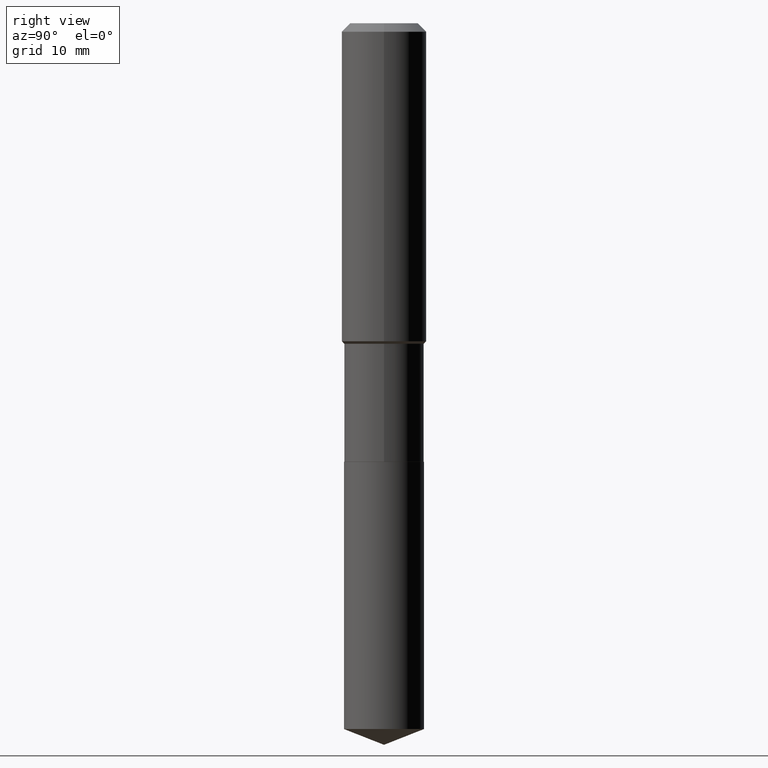
[diagram: clean part render]
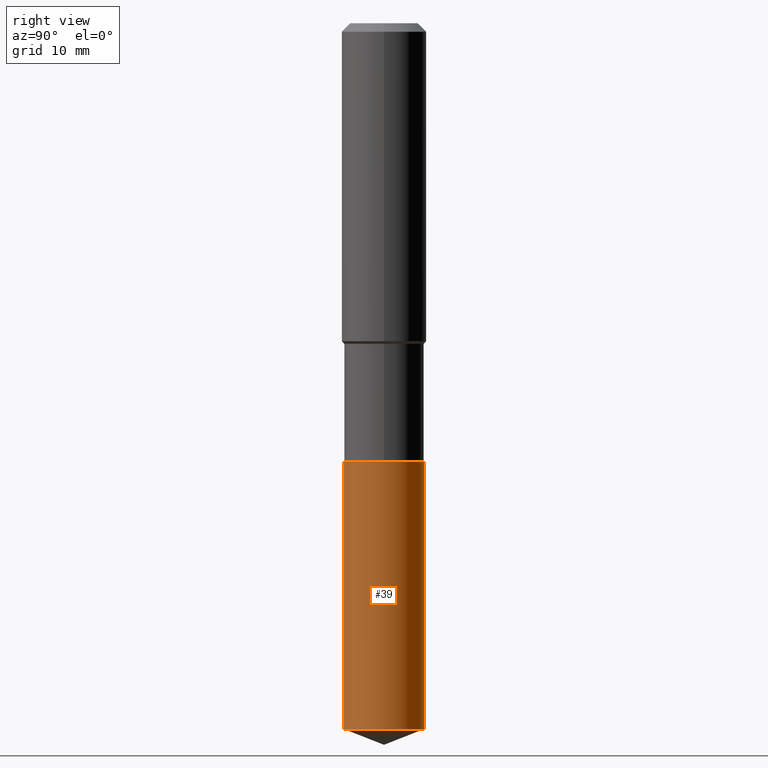
[diagram: same view with one face highlighted and labeled with its STEP entity id]
A machine part, right view. The second image highlights one B-rep face of the part: STEP entity #39.
In plain terms, the highlighted cylindrical surface (partial cylindrical patch) has radius 5.6502 mm, axis along (-0, 0, 1).
Its self-contained STEP definition (entity closure, byte-faithful):
#39 = ADVANCED_FACE ( 'NONE', ( #271 ), #201, .T. ) ;
#45 = VECTOR ( 'NONE', #319, 39.37007874015748143 ) ;
#48 = VERTEX_POINT ( 'NONE', #475 ) ;
#59 = DIRECTION ( 'NONE',  ( -6.982962677686265922E-15, -1.000000000000000000, 3.684218467517549413E-15 ) ) ;
#62 = CARTESIAN_POINT ( 'NONE',  ( 5.969144809017299038E-29, -8.522356799982232966E-15, -2.440900000000000070 ) ) ;
#67 = EDGE_LOOP ( 'NONE', ( #266, #478, #344, #313 ) ) ;
#90 = VERTEX_POINT ( 'NONE', #104 ) ;
#97 = CARTESIAN_POINT ( 'NONE',  ( 5.969144809017299038E-29, -8.522356799982232966E-15, -2.440900000000000070 ) ) ;
#101 = AXIS2_PLACEMENT_3D ( 'NONE', #62, #434, #338 ) ;
#104 = CARTESIAN_POINT ( 'NONE',  ( 1.580602315698438773E-15, 0.2224499999999862698, -3.928074614699457623 ) ) ;
#130 = DIRECTION ( 'NONE',  ( -2.445399602320894408E-29, 3.491580442715579660E-15, 1.000000000000000000 ) ) ;
#143 = VERTEX_POINT ( 'NONE', #468 ) ;
#158 = CARTESIAN_POINT ( 'NONE',  ( -1.553360047651250128E-15, -0.2224500000000085576, -2.440899999999999181 ) ) ;
#160 = EDGE_CURVE ( 'NONE', #48, #426, #349, .T. ) ;
#184 = EDGE_CURVE ( 'NONE', #143, #90, #362, .T. ) ;
#199 = CARTESIAN_POINT ( 'NONE',  ( 1.580602315698439167E-15, 0.2224499999999915156, -2.440900000000000514 ) ) ;
#201 = CYLINDRICAL_SURFACE ( 'NONE', #101, 0.2224500000000000088 ) ;
#203 = LINE ( 'NONE', #158, #244 ) ;
#227 = AXIS2_PLACEMENT_3D ( 'NONE', #379, #130, #352 ) ;
#239 = LINE ( 'NONE', #267, #45 ) ;
#244 = VECTOR ( 'NONE', #423, 39.37007874015748143 ) ;
#251 = DIRECTION ( 'NONE',  ( -2.445399602320894408E-29, 3.491580442715579660E-15, 1.000000000000000000 ) ) ;
#266 = ORIENTED_EDGE ( 'NONE', *, *, #184, .T. ) ;
#267 = CARTESIAN_POINT ( 'NONE',  ( 1.580602315698402288E-15, 0.2224499999999914601, -2.440900000000000514 ) ) ;
#271 = FACE_OUTER_BOUND ( 'NONE', #67, .T. ) ;
#313 = ORIENTED_EDGE ( 'NONE', *, *, #435, .F. ) ;
#319 = DIRECTION ( 'NONE',  ( -2.445399602320894689E-29, 3.491580442715579660E-15, 1.000000000000000000 ) ) ;
#338 = DIRECTION ( 'NONE',  ( -6.982962677686265922E-15, -1.000000000000000000, 3.684218467517549413E-15 ) ) ;
#344 = ORIENTED_EDGE ( 'NONE', *, *, #160, .F. ) ;
#349 = CIRCLE ( 'NONE', #438, 0.2224500000000000088 ) ;
#352 = DIRECTION ( 'NONE',  ( -6.982962677686265922E-15, -1.000000000000000000, 2.456145645011699872E-15 ) ) ;
#362 = CIRCLE ( 'NONE', #227, 0.2224500000000000088 ) ;
#379 = CARTESIAN_POINT ( 'NONE',  ( 9.605881020385081539E-29, -1.371494659956993350E-14, -3.928074614699457179 ) ) ;
#423 = DIRECTION ( 'NONE',  ( -2.445399602320894689E-29, 3.491580442715579660E-15, 1.000000000000000000 ) ) ;
#426 = VERTEX_POINT ( 'NONE', #199 ) ;
#434 = DIRECTION ( 'NONE',  ( -2.445399602320894408E-29, 3.491580442715579660E-15, 1.000000000000000000 ) ) ;
#435 = EDGE_CURVE ( 'NONE', #143, #48, #203, .T. ) ;
#438 = AXIS2_PLACEMENT_3D ( 'NONE', #97, #251, #59 ) ;
#449 = EDGE_CURVE ( 'NONE', #90, #426, #239, .T. ) ;
#468 = CARTESIAN_POINT ( 'NONE',  ( -1.553360047651213446E-15, -0.2224500000000136923, -3.928074614699456291 ) ) ;
#475 = CARTESIAN_POINT ( 'NONE',  ( -1.553360047651250128E-15, -0.2224500000000085576, -2.440899999999999181 ) ) ;
#478 = ORIENTED_EDGE ( 'NONE', *, *, #449, .T. ) ;